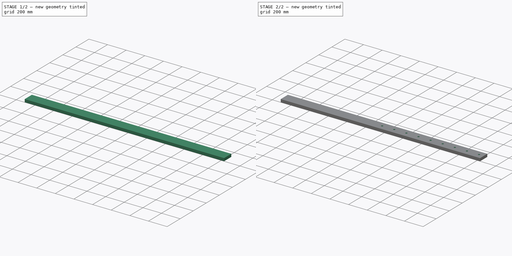
[diagram: build sequence overview — one tinted view per stage of 2, left to right]
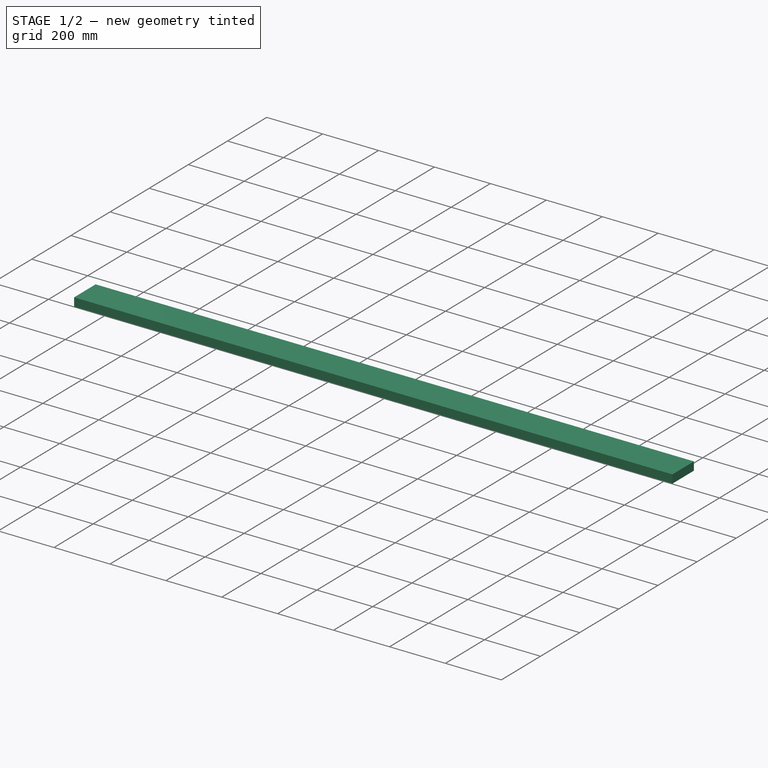
[diagram: stage 1 of 2 — iso view after this stage's code; geometry added in this stage tinted green]
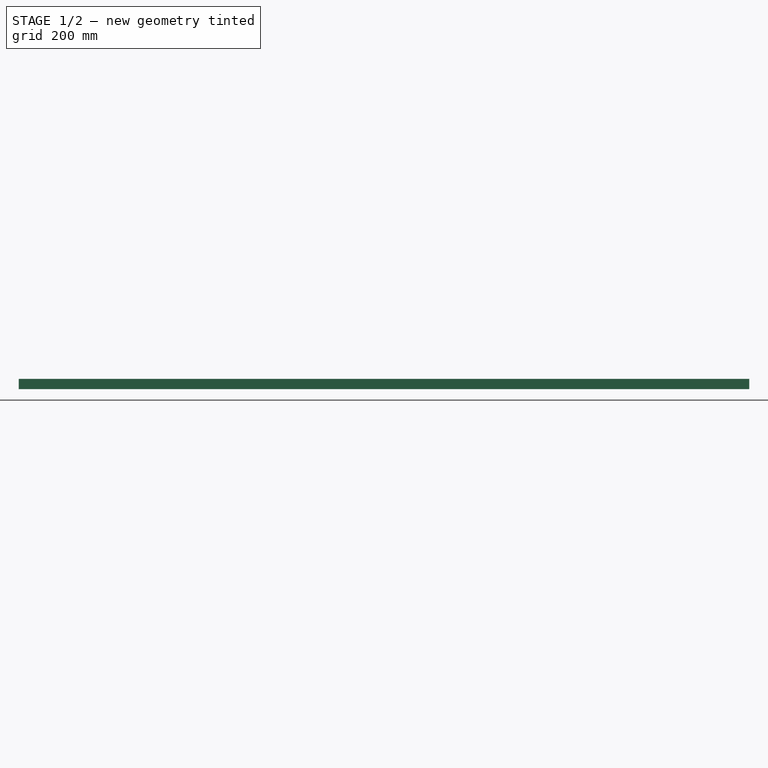
[diagram: stage 1 of 2 — front view after this stage's code; geometry added in this stage tinted green]
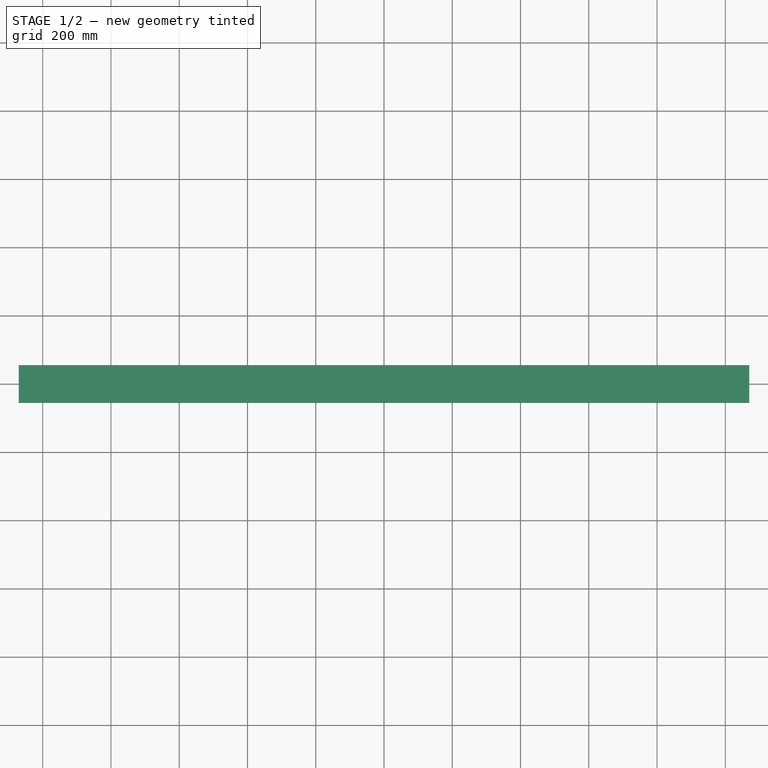
[diagram: stage 1 of 2 — top view after this stage's code; geometry added in this stage tinted green]
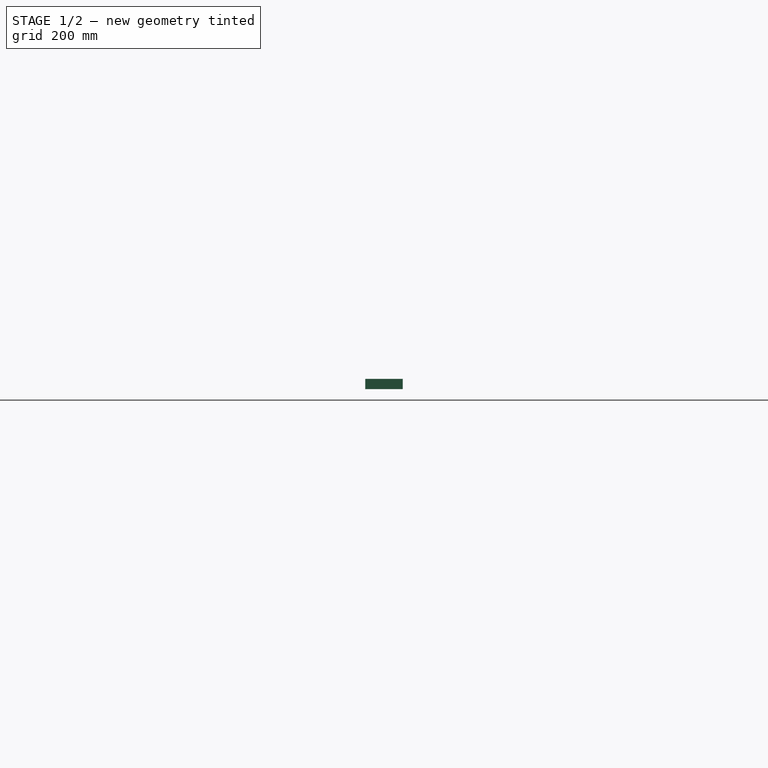
[diagram: stage 1 of 2 — right view after this stage's code; geometry added in this stage tinted green]
FCSTD DOCUMENT  (FreeCAD 1.0R39109 (Git))
Label: 024_table_frame_middle
License: All rights reserved
LicenseURL: http://en.wikipedia.org/wiki/All_rights_reserved
objects: Sketcher::SketchObject×2, Spreadsheet::Sheet×1, PartDesign::Pad×1, PartDesign::Pocket×1, PartDesign::Body×1
note: 11 computed .brp shape members not serialized (recipe doc carries the construction recipe); baked Part::Feature solids carry a one-line shape summary decoded from their .brp

FEATURE [Spreadsheet::Sheet] Spreadsheet
  cells = A4='length; B4(length)=2200; A5='width; B5(width)=110; A6='height; B6(height)=30
FEATURE [Sketcher::SketchObject] Sketch
  ArcFitTolerance = 1e-06
  AttachmentSupport = -> [XY_Plane]
  FullyConstrained = true
  MakeInternals = false
  MapMode = 5
  expr: Constraints[11] = Spreadsheet.length - 2 * Spreadsheet.height
  expr: Constraints[12] = Spreadsheet.width
  sketch-geometry (5):
    g0: LineSegment StartX=-1070 StartY=55 StartZ=0 EndX=-1070 EndY=-55 EndZ=0
    g1: LineSegment StartX=-1070 StartY=-55 StartZ=0 EndX=1070 EndY=-55 EndZ=0
    g2: LineSegment StartX=1070 StartY=-55 StartZ=0 EndX=1070 EndY=55 EndZ=0
    g3: LineSegment StartX=1070 StartY=55 StartZ=0 EndX=-1070 EndY=55 EndZ=0
    g4: LineSegment [constr] StartX=-1070 StartY=55 StartZ=0 EndX=1070 EndY=-55 EndZ=0
  constraints (13):
    c: Coincident(g0,g1)
    c: Coincident(g1,g2)
    c: Coincident(g2,g3)
    c: Coincident(g3,g0)
    c: Vertical(g0)
    c: Vertical(g2)
    c: Horizontal(g1)
    c: Horizontal(g3)
    c: Coincident(g4,g0)
    c: Coincident(g4,g1)
    c: Symmetric(g4,g4,g-1)
    c: DistanceX(g3,g3) = 2140
    c: DistanceY(g0,g0) = 110
FEATURE [PartDesign::Pad] Pad
  Direction = (0,0,1)
  Length = 30
  Length2 = 10
  Midplane = true
  Profile = -> Sketch
  ReferenceAxis = -> Sketch [N_Axis]
  Suppressed = false
  Type = 0
  expr: Length = Spreadsheet.height
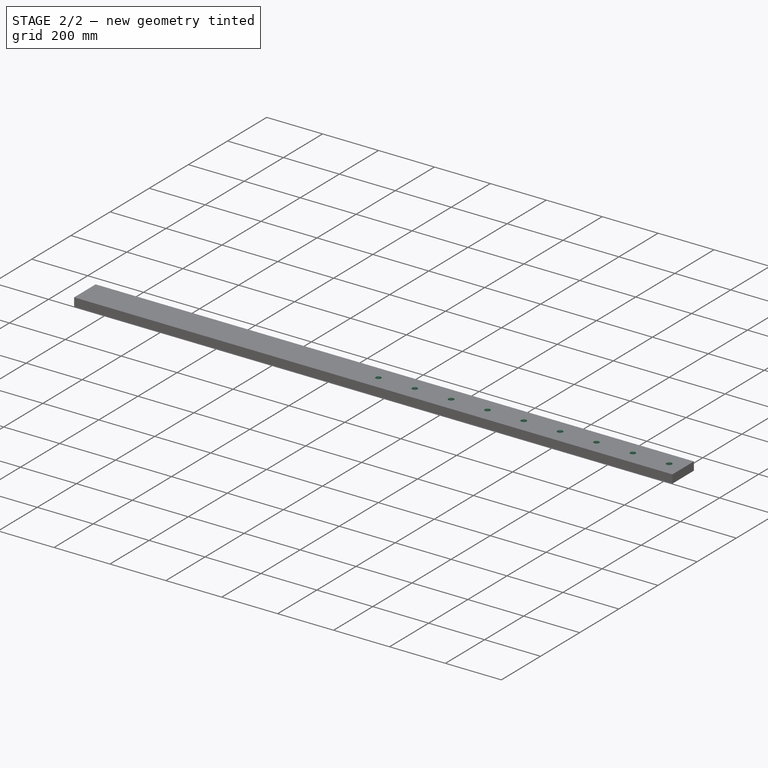
[diagram: stage 2 of 2 — iso view after this stage's code; geometry added in this stage tinted green]
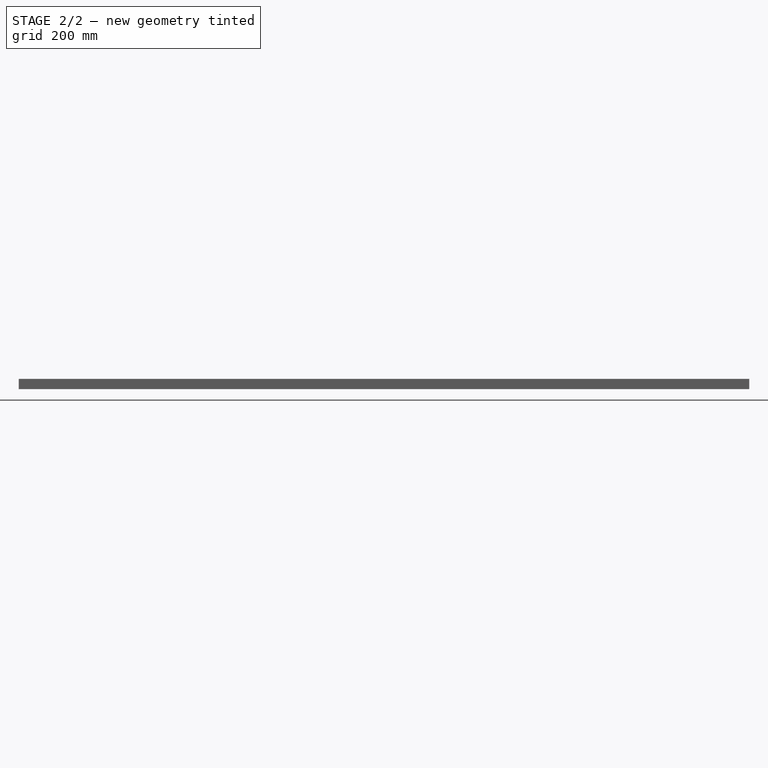
[diagram: stage 2 of 2 — front view after this stage's code; geometry added in this stage tinted green]
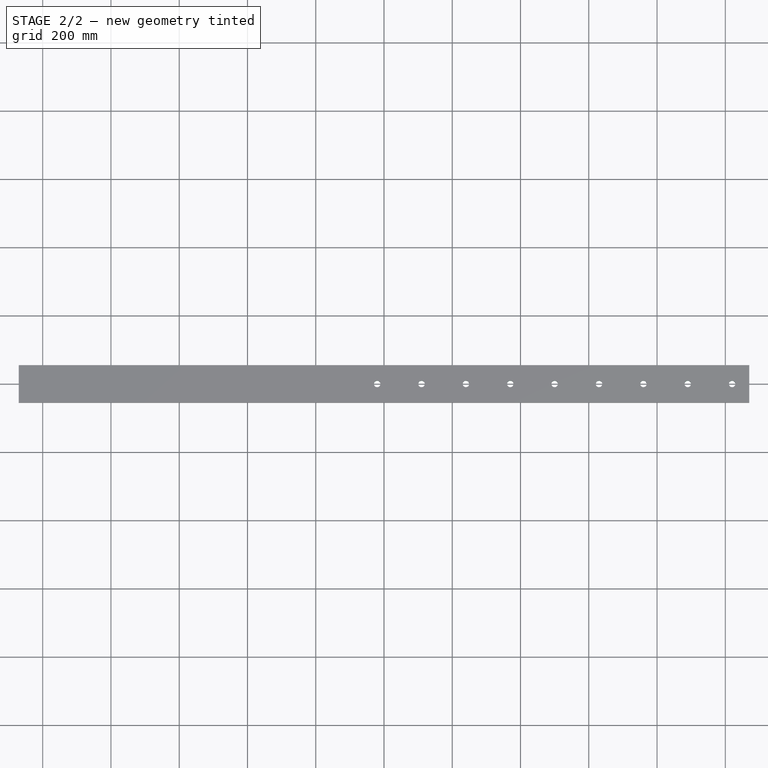
[diagram: stage 2 of 2 — top view after this stage's code; geometry added in this stage tinted green]
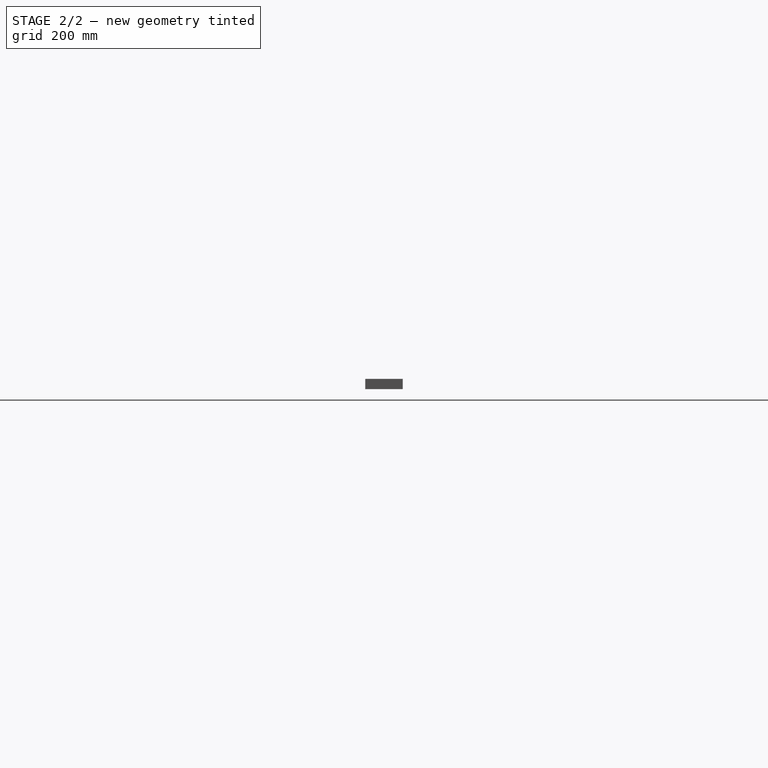
[diagram: stage 2 of 2 — right view after this stage's code; geometry added in this stage tinted green]
FEATURE [Sketcher::SketchObject] Sketch001
  ArcFitTolerance = 1e-06
  AttachmentSupport = -> [XY_Plane]
  ExternalGeometry = -> [Pad]
  FullyConstrained = false
  MakeInternals = false
  MapMode = 5
  sketch-geometry (10):
    g0: LineSegment [constr] StartX=-1070 StartY=0 StartZ=0 EndX=1070 EndY=0 EndZ=0
    g1: Circle CenterX=1020 CenterY=0 CenterZ=0 NormalX=0 NormalY=0 NormalZ=1 AngleXU=0 Radius=9.5
    g2: Circle CenterX=890 CenterY=0 CenterZ=0 NormalX=0 NormalY=0 NormalZ=1 AngleXU=0 Radius=9.5
    g3: Circle CenterX=760 CenterY=0 CenterZ=0 NormalX=0 NormalY=0 NormalZ=1 AngleXU=0 Radius=9.5
    g4: Circle CenterX=630 CenterY=0 CenterZ=0 NormalX=0 NormalY=0 NormalZ=1 AngleXU=0 Radius=9.5
    g5: Circle CenterX=500 CenterY=0 CenterZ=0 NormalX=0 NormalY=0 NormalZ=1 AngleXU=0 Radius=9.5
    g6: Circle CenterX=370 CenterY=0 CenterZ=0 NormalX=0 NormalY=0 NormalZ=1 AngleXU=0 Radius=9.5
    g7: Circle CenterX=240 CenterY=0 CenterZ=0 NormalX=0 NormalY=0 NormalZ=1 AngleXU=0 Radius=9.5
    g8: Circle CenterX=110 CenterY=0 CenterZ=0 NormalX=0 NormalY=0 NormalZ=1 AngleXU=0 Radius=9.5
    g9: Circle CenterX=-20 CenterY=0 CenterZ=0 NormalX=0 NormalY=0 NormalZ=1 AngleXU=0 Radius=9.5
  constraints (13):
    c: Symmetric(g-3,g-3,g0)
    c: Symmetric(g-4,g-4,g0)
    c: PointOnObject(g1,g0)
    c: Diameter(g1) = 19
    c: Distance(g1,g-4) = 50
    c: Diameter(g2) = 19
    c: Diameter(g3) = 19
    c: Diameter(g4) = 19
    c: Diameter(g5) = 19
    c: Diameter(g6) = 19
    c: Diameter(g7) = 19
    c: Diameter(g8) = 19
    c: Diameter(g9) = 19
FEATURE [PartDesign::Pocket] Pocket
  BaseFeature = -> Pad
  Direction = (0,0,-1)
  Length = 5
  Length2 = 5
  Midplane = true
  Profile = -> Sketch001
  ReferenceAxis = -> Sketch001 [N_Axis]
  Suppressed = false
  Type = 1
FEATURE [PartDesign::Body] Body
  AllowCompound = false
  Group = -> [Sketch,Pad,Sketch001,Pocket]
  Origin = -> Origin
  Tip = -> Pocket
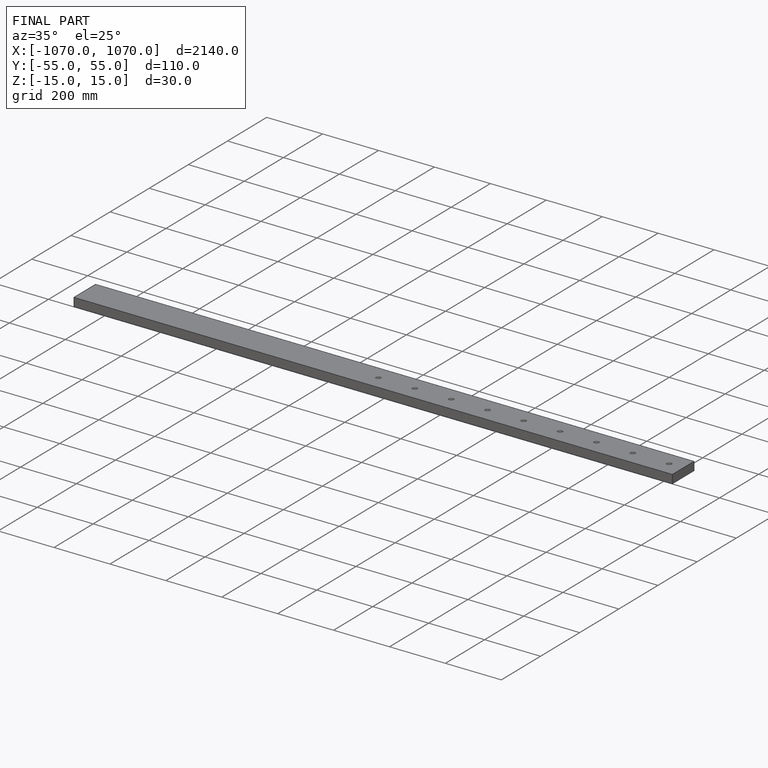
[diagram: finished part — iso view with bounding-box wireframe]
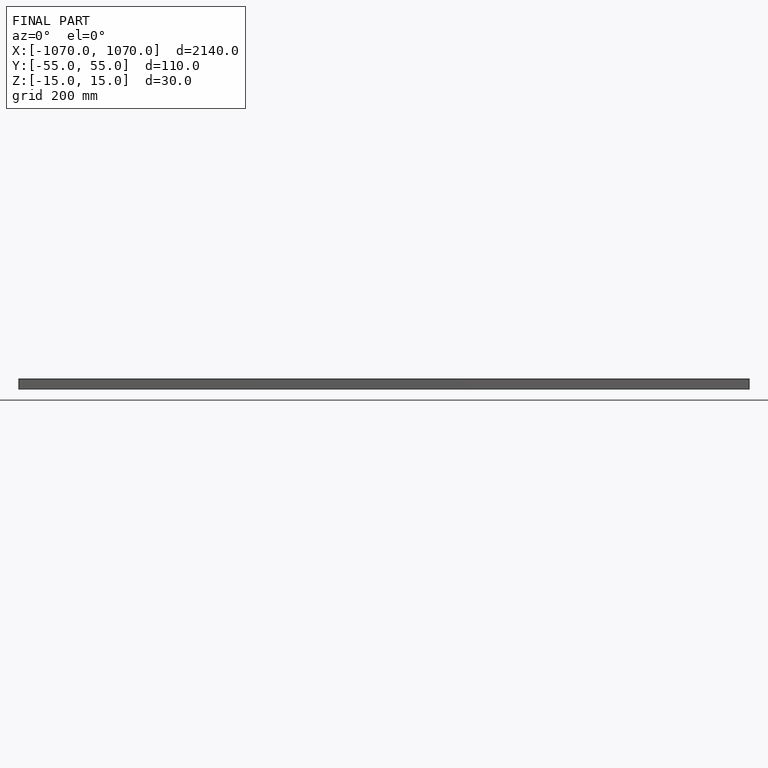
[diagram: finished part — front view with bounding-box wireframe]
